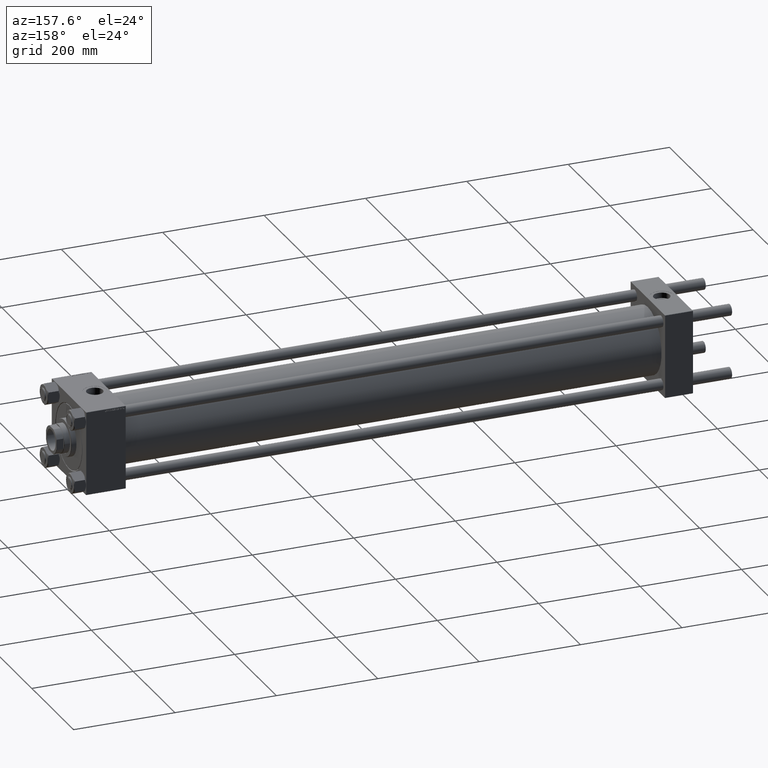
[diagram: clean part render]
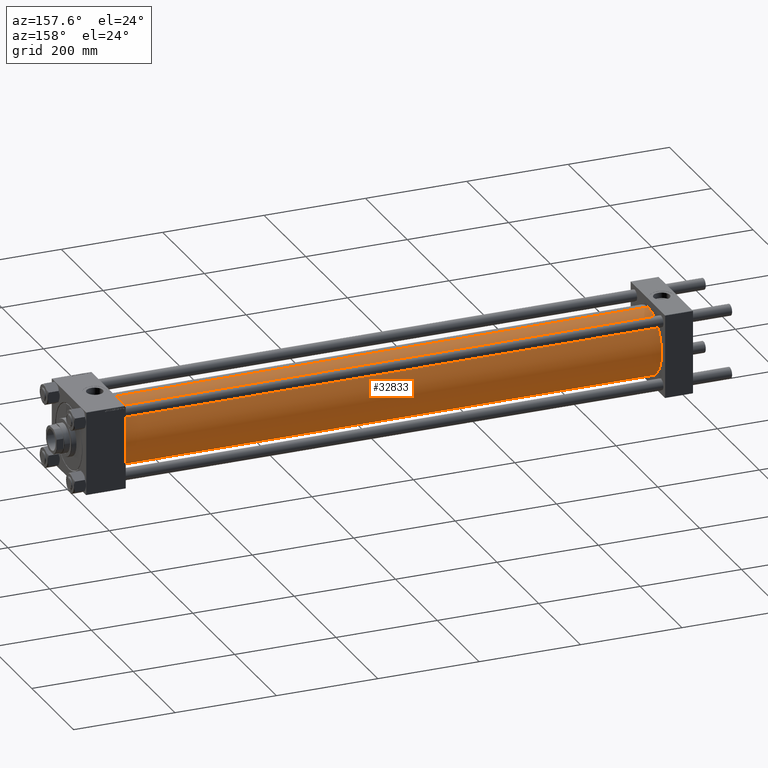
[diagram: same view with one face highlighted and labeled with its STEP entity id]
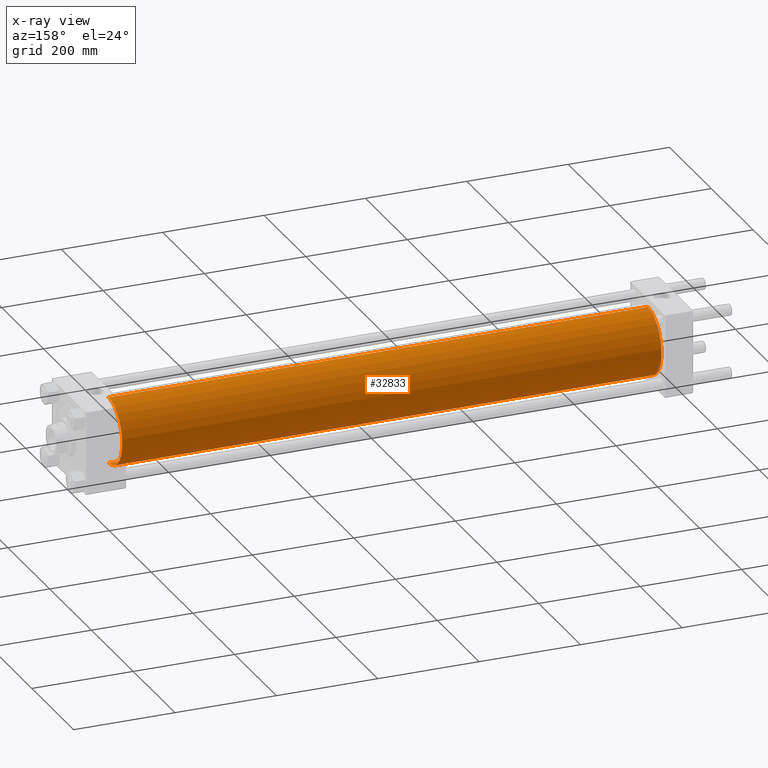
[diagram: x-ray of the same camera — body ghosted, the highlighted face saturated]
A machine part, auxiliary view. The second image highlights one B-rep face of the part: STEP entity #32833.
The next image is the same camera in x-ray: the body ghosted, the highlighted face saturated — about 0% of this face is hidden behind the body in this view.
In plain terms, the highlighted cylindrical surface (edge-blend (fillet) strip) has radius 65.5 mm, axis along (-1, -0, -0).
Its self-contained STEP definition (entity closure, byte-faithful):
#3022 = DIRECTION ( 'NONE',  ( -1.000000000000000000, -0.000000000000000000, -0.000000000000000000 ) ) ;
#3136 = CARTESIAN_POINT ( 'NONE',  ( 54.99999999999993605, 8.021436534415166404E-15, -65.50000000000001421 ) ) ;
#3272 = CARTESIAN_POINT ( 'NONE',  ( 1119.000000000000000, 0.000000000000000000, 65.50000000000001421 ) ) ;
#3483 = VERTEX_POINT ( 'NONE', #28148 ) ;
#4205 = DIRECTION ( 'NONE',  ( 1.000000000000000000, -0.000000000000000000, -0.000000000000000000 ) ) ;
#6323 = CARTESIAN_POINT ( 'NONE',  ( 1119.000000000000000, 0.000000000000000000, 0.000000000000000000 ) ) ;
#6475 = DIRECTION ( 'NONE',  ( -1.000000000000000000, -0.000000000000000000, -0.000000000000000000 ) ) ;
#7335 = LINE ( 'NONE', #3272, #25239 ) ;
#7383 = ORIENTED_EDGE ( 'NONE', *, *, #28915, .T. ) ;
#7484 = VERTEX_POINT ( 'NONE', #3136 ) ;
#9301 = AXIS2_PLACEMENT_3D ( 'NONE', #11330, #4205, #31418 ) ;
#9788 = EDGE_CURVE ( 'NONE', #41880, #7484, #21369, .T. ) ;
#11330 = CARTESIAN_POINT ( 'NONE',  ( 54.99999999999993605, 0.000000000000000000, 0.000000000000000000 ) ) ;
#12676 = AXIS2_PLACEMENT_3D ( 'NONE', #21500, #6475, #14354 ) ;
#14180 = EDGE_CURVE ( 'NONE', #41880, #29646, #17101, .T. ) ;
#14354 = DIRECTION ( 'NONE',  ( 0.000000000000000000, 0.000000000000000000, 1.000000000000000000 ) ) ;
#14359 = EDGE_CURVE ( 'NONE', #29646, #3483, #7335, .T. ) ;
#17101 = CIRCLE ( 'NONE', #17888, 65.50000000000001421 ) ;
#17434 = CYLINDRICAL_SURFACE ( 'NONE', #12676, 65.50000000000001421 ) ;
#17888 = AXIS2_PLACEMENT_3D ( 'NONE', #6323, #33558, #49050 ) ;
#21369 = LINE ( 'NONE', #22100, #33905 ) ;
#21500 = CARTESIAN_POINT ( 'NONE',  ( 1119.000000000000000, 0.000000000000000000, 0.000000000000000000 ) ) ;
#22100 = CARTESIAN_POINT ( 'NONE',  ( 1119.000000000000000, 8.021436534415166404E-15, -65.50000000000001421 ) ) ;
#24302 = ORIENTED_EDGE ( 'NONE', *, *, #9788, .T. ) ;
#24742 = CIRCLE ( 'NONE', #9301, 65.50000000000001421 ) ;
#25239 = VECTOR ( 'NONE', #3022, 1000.000000000000000 ) ;
#28148 = CARTESIAN_POINT ( 'NONE',  ( 54.99999999999993605, 0.000000000000000000, 65.50000000000001421 ) ) ;
#28915 = EDGE_CURVE ( 'NONE', #7484, #3483, #24742, .T. ) ;
#29564 = EDGE_LOOP ( 'NONE', ( #36545, #24302, #7383, #42729 ) ) ;
#29646 = VERTEX_POINT ( 'NONE', #32127 ) ;
#31418 = DIRECTION ( 'NONE',  ( 0.000000000000000000, 0.000000000000000000, 1.000000000000000000 ) ) ;
#32127 = CARTESIAN_POINT ( 'NONE',  ( 1119.000000000000000, 0.000000000000000000, 65.50000000000001421 ) ) ;
#32833 = ADVANCED_FACE ( 'NONE', ( #43709 ), #17434, .T. ) ;
#33558 = DIRECTION ( 'NONE',  ( 1.000000000000000000, 0.000000000000000000, 0.000000000000000000 ) ) ;
#33905 = VECTOR ( 'NONE', #40958, 1000.000000000000000 ) ;
#36545 = ORIENTED_EDGE ( 'NONE', *, *, #14180, .F. ) ;
#39891 = CARTESIAN_POINT ( 'NONE',  ( 1119.000000000000000, 8.021436534415166404E-15, -65.50000000000001421 ) ) ;
#40958 = DIRECTION ( 'NONE',  ( -1.000000000000000000, -0.000000000000000000, -0.000000000000000000 ) ) ;
#41880 = VERTEX_POINT ( 'NONE', #39891 ) ;
#42729 = ORIENTED_EDGE ( 'NONE', *, *, #14359, .F. ) ;
#43709 = FACE_OUTER_BOUND ( 'NONE', #29564, .T. ) ;
#49050 = DIRECTION ( 'NONE',  ( 0.000000000000000000, 0.000000000000000000, -1.000000000000000000 ) ) ;